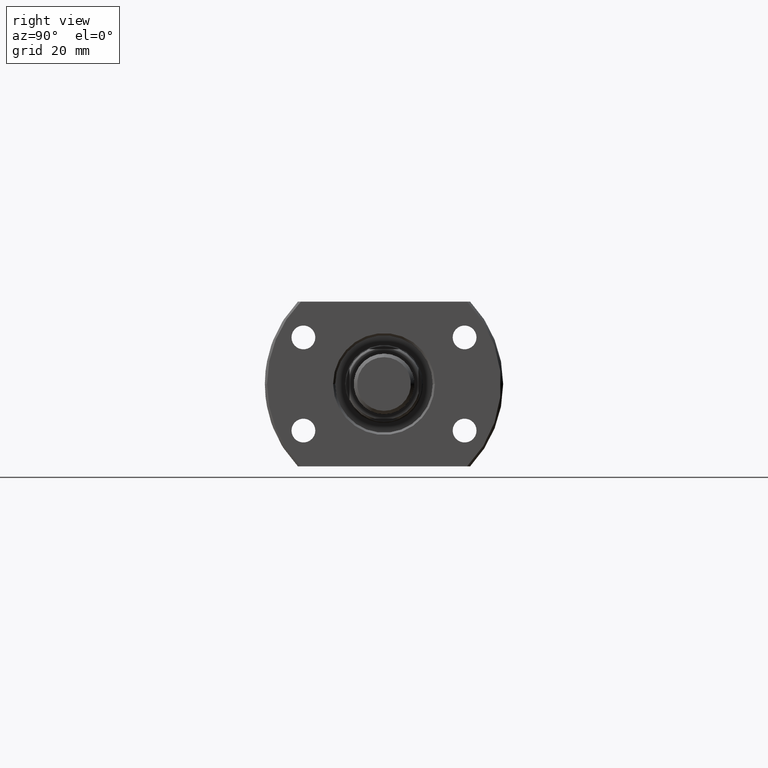
[diagram: clean part render]
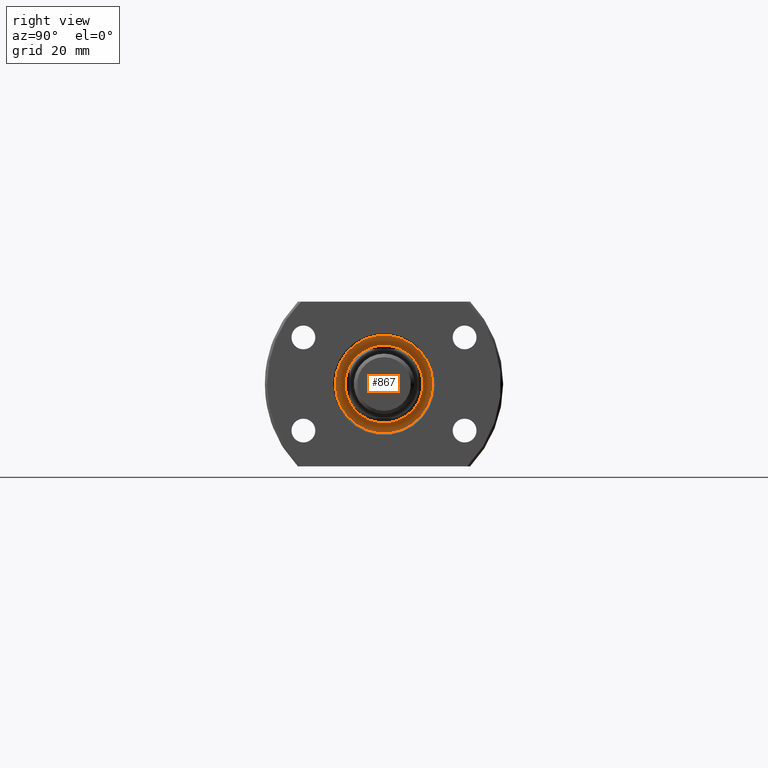
[diagram: same view with one face highlighted and labeled with its STEP entity id]
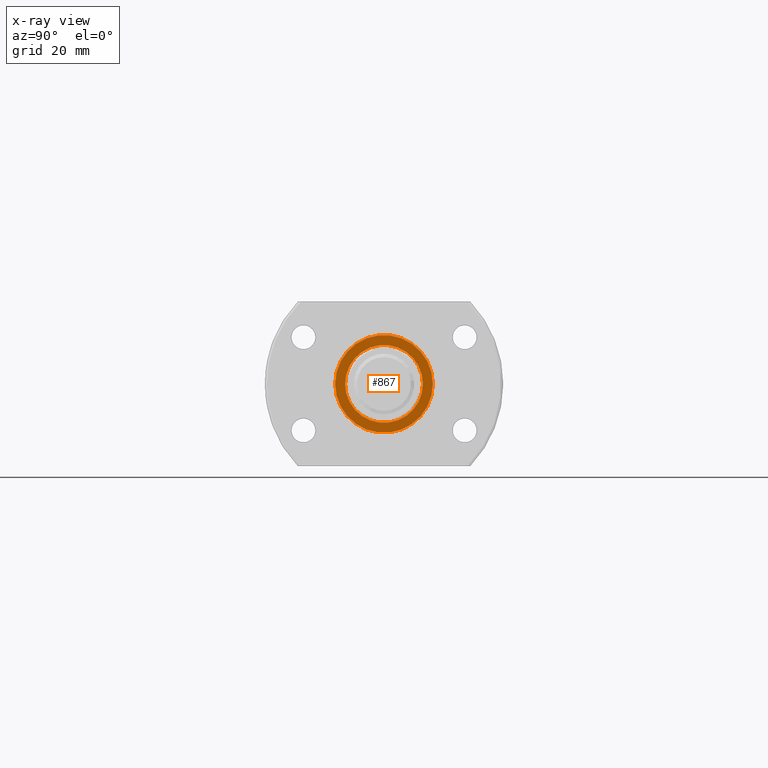
[diagram: x-ray of the same camera — body ghosted, the highlighted face saturated]
A machine part, right view. The second image highlights one B-rep face of the part: STEP entity #867.
The next image is the same camera in x-ray: the body ghosted, the highlighted face saturated — about 0% of this face is hidden behind the body in this view.
In plain terms, the highlighted planar face has unit normal (1, -0, 0).
Its self-contained STEP definition (entity closure, byte-faithful):
#9 = FACE_BOUND ( 'NONE', #3568, .T. ) ;
#82 = DIRECTION ( 'NONE',  ( 1.000000000000000000, -2.886466111666351885E-14, 0.000000000000000000 ) ) ;
#213 = CIRCLE ( 'NONE', #3368, 11.25000000000000178 ) ;
#244 = ORIENTED_EDGE ( 'NONE', *, *, #1926, .F. ) ;
#298 = DIRECTION ( 'NONE',  ( 1.000000000000000000, -2.886466111666351885E-14, 0.000000000000000000 ) ) ;
#387 = EDGE_CURVE ( 'NONE', #1552, #1242, #741, .T. ) ;
#515 = CARTESIAN_POINT ( 'NONE',  ( 24.50000000000026290, 8.999999999999291234, 0.000000000000000000 ) ) ;
#541 = CARTESIAN_POINT ( 'NONE',  ( 24.49999999999967315, -11.25000000000065015, 1.377727649040772586E-15 ) ) ;
#548 = PLANE ( 'NONE',  #1584 ) ;
#656 = FACE_OUTER_BOUND ( 'NONE', #1153, .T. ) ;
#741 = CIRCLE ( 'NONE', #2939, 11.25000000000000178 ) ;
#776 = EDGE_CURVE ( 'NONE', #1242, #1552, #213, .T. ) ;
#826 = DIRECTION ( 'NONE',  ( 2.886466111666351885E-14, 1.000000000000000000, 0.000000000000000000 ) ) ;
#867 = ADVANCED_FACE ( 'NONE', ( #9, #656 ), #548, .T. ) ;
#936 = CARTESIAN_POINT ( 'NONE',  ( 24.50000000000000000, -7.071841973582561613E-13, 0.000000000000000000 ) ) ;
#952 = DIRECTION ( 'NONE',  ( 2.891205793294678701E-14, 1.000000000000000000, 0.000000000000000000 ) ) ;
#1042 = DIRECTION ( 'NONE',  ( 1.000000000000000000, -2.886466111666351885E-14, 0.000000000000000000 ) ) ;
#1153 = EDGE_LOOP ( 'NONE', ( #2608, #1621 ) ) ;
#1242 = VERTEX_POINT ( 'NONE', #541 ) ;
#1276 = AXIS2_PLACEMENT_3D ( 'NONE', #1635, #298, #1439 ) ;
#1408 = VERTEX_POINT ( 'NONE', #515 ) ;
#1434 = DIRECTION ( 'NONE',  ( 1.000000000000000000, -2.886466111666351885E-14, 0.000000000000000000 ) ) ;
#1439 = DIRECTION ( 'NONE',  ( 2.891205793294678701E-14, 1.000000000000000000, 0.000000000000000000 ) ) ;
#1552 = VERTEX_POINT ( 'NONE', #2884 ) ;
#1584 = AXIS2_PLACEMENT_3D ( 'NONE', #3110, #1725, #826 ) ;
#1621 = ORIENTED_EDGE ( 'NONE', *, *, #776, .T. ) ;
#1635 = CARTESIAN_POINT ( 'NONE',  ( 24.50000000000000000, -7.071841973582561613E-13, 0.000000000000000000 ) ) ;
#1720 = CARTESIAN_POINT ( 'NONE',  ( 24.49999999999974065, -9.000000000000706990, 1.102182119232659129E-15 ) ) ;
#1725 = DIRECTION ( 'NONE',  ( 1.000000000000000000, -2.886466111666351885E-14, 0.000000000000000000 ) ) ;
#1926 = EDGE_CURVE ( 'NONE', #2886, #1408, #3600, .T. ) ;
#2028 = CARTESIAN_POINT ( 'NONE',  ( 24.50000000000000000, -6.492221922330912001E-13, 0.000000000000000000 ) ) ;
#2251 = ORIENTED_EDGE ( 'NONE', *, *, #2449, .F. ) ;
#2449 = EDGE_CURVE ( 'NONE', #1408, #2886, #3190, .T. ) ;
#2464 = AXIS2_PLACEMENT_3D ( 'NONE', #936, #82, #952 ) ;
#2560 = DIRECTION ( 'NONE',  ( 2.898915675410130686E-14, 1.000000000000000000, 0.000000000000000000 ) ) ;
#2608 = ORIENTED_EDGE ( 'NONE', *, *, #387, .T. ) ;
#2742 = DIRECTION ( 'NONE',  ( 2.898915675410130686E-14, 1.000000000000000000, 0.000000000000000000 ) ) ;
#2884 = CARTESIAN_POINT ( 'NONE',  ( 24.50000000000032685, 11.24999999999935341, 0.000000000000000000 ) ) ;
#2886 = VERTEX_POINT ( 'NONE', #1720 ) ;
#2939 = AXIS2_PLACEMENT_3D ( 'NONE', #2028, #1434, #2560 ) ;
#3110 = CARTESIAN_POINT ( 'NONE',  ( 24.50000000000000000, -6.492221922330912001E-13, 0.000000000000000000 ) ) ;
#3190 = CIRCLE ( 'NONE', #2464, 9.000000000000000000 ) ;
#3368 = AXIS2_PLACEMENT_3D ( 'NONE', #3603, #1042, #2742 ) ;
#3568 = EDGE_LOOP ( 'NONE', ( #2251, #244 ) ) ;
#3600 = CIRCLE ( 'NONE', #1276, 9.000000000000000000 ) ;
#3603 = CARTESIAN_POINT ( 'NONE',  ( 24.50000000000000000, -6.492221922330912001E-13, 0.000000000000000000 ) ) ;